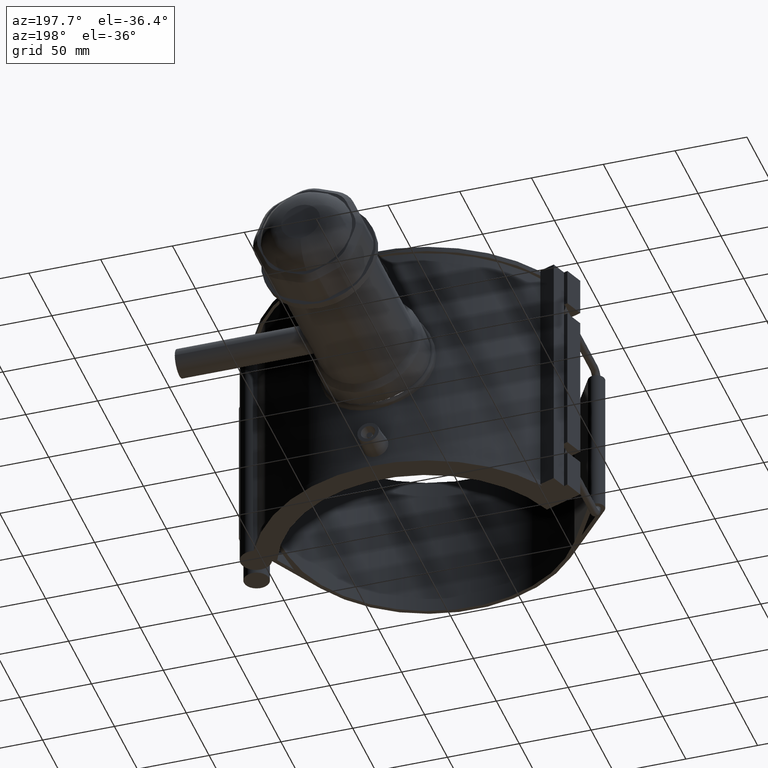
[diagram: clean part render]
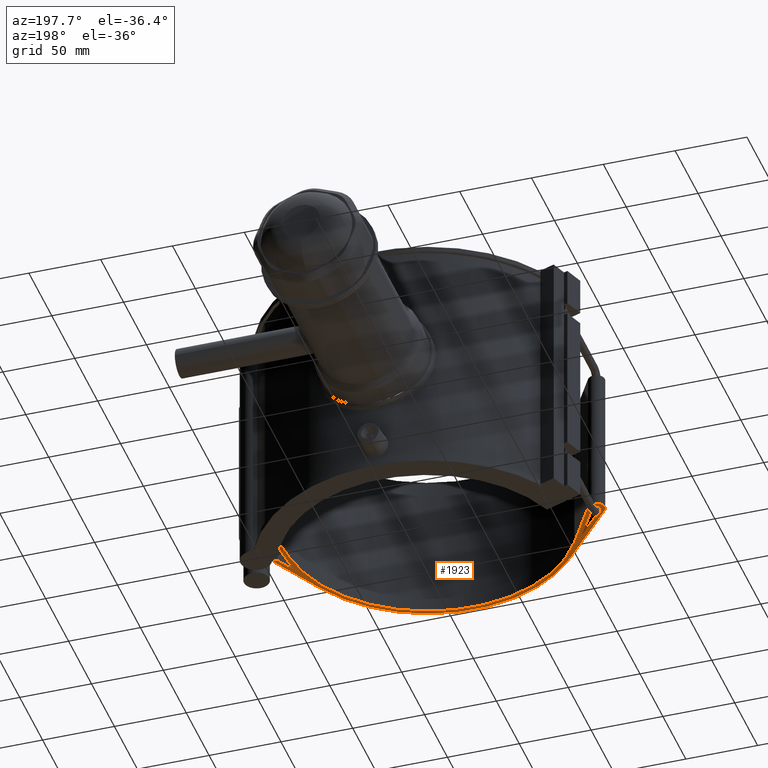
[diagram: same view with one face highlighted and labeled with its STEP entity id]
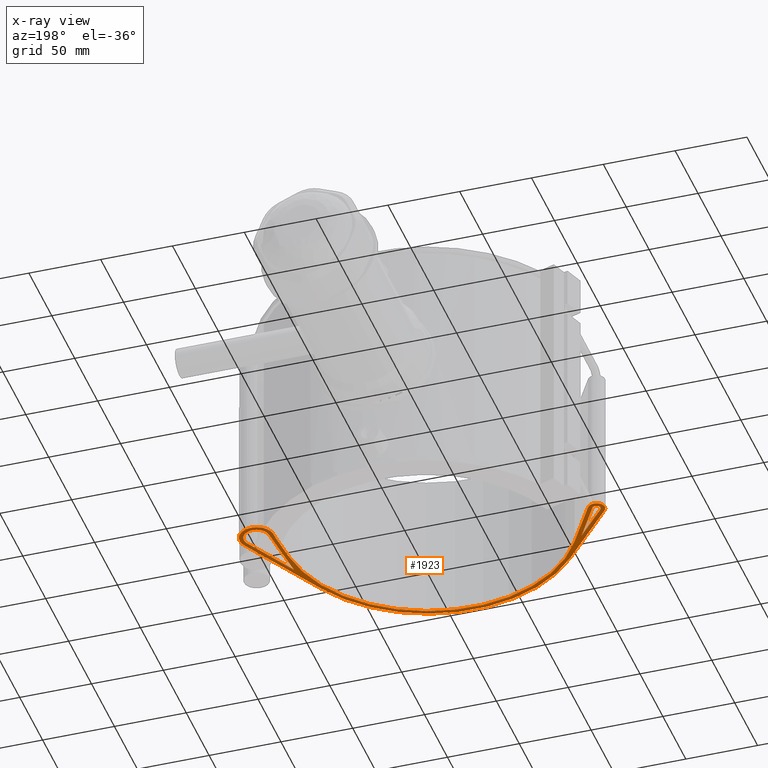
[diagram: x-ray of the same camera — body ghosted, the highlighted face saturated]
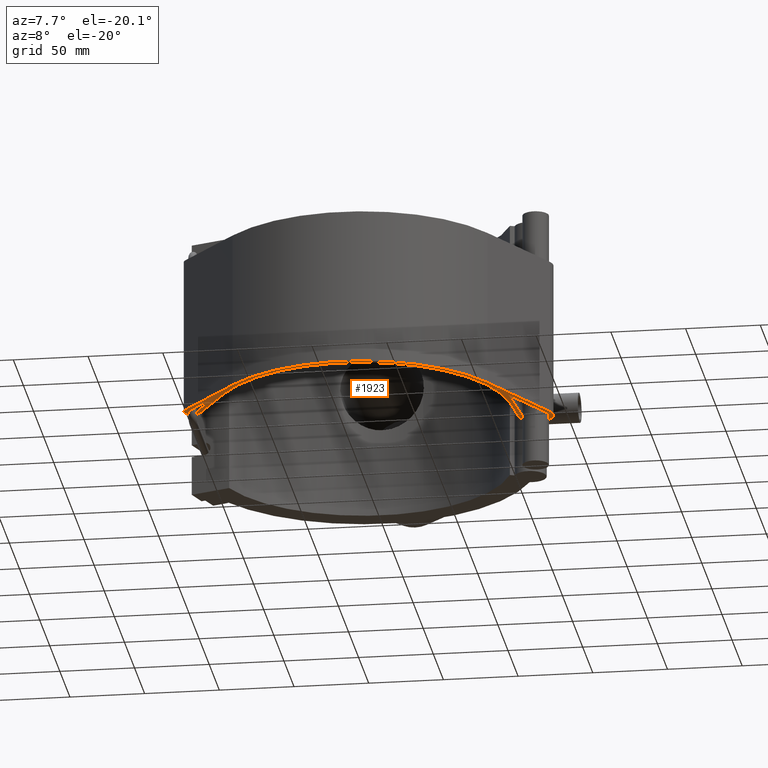
[diagram: same view with one face highlighted and labeled with its STEP entity id]
A machine part, auxiliary view. The second image highlights one B-rep face of the part: STEP entity #1923.
The next image is the same camera in x-ray: the body ghosted, the highlighted face saturated — about 10% of this face is hidden behind the body in this view.
A second angle (auxiliary view) of the same face is appended — the face is thin or edge-on in the first view.
In plain terms, the highlighted planar face has unit normal (0, 0, 1).
Its self-contained STEP definition (entity closure, byte-faithful):
#95=LINE('',#3265,#256);
#99=LINE('',#3273,#260);
#102=LINE('',#3284,#263);
#103=LINE('',#3288,#264);
#104=LINE('',#3292,#265);
#105=LINE('',#3296,#266);
#106=LINE('',#3302,#267);
#107=LINE('',#3303,#268);
#256=VECTOR('',#2430,42.3357405477701);
#260=VECTOR('',#2436,42.3357405477701);
#263=VECTOR('',#2445,69.8614012500134);
#264=VECTOR('',#2448,57.6362723718396);
#265=VECTOR('',#2451,39.7006283693455);
#266=VECTOR('',#2454,18.7376487946892);
#267=VECTOR('',#2459,31.6910839622462);
#268=VECTOR('',#2460,31.6910839622462);
#374=FACE_BOUND('',#637,.T.);
#375=FACE_BOUND('',#638,.T.);
#502=FACE_OUTER_BOUND('',#636,.T.);
#636=EDGE_LOOP('',(#1467,#1468,#1469,#1470,#1471,#1472,#1473,#1474,#1475,
#1476));
#637=EDGE_LOOP('',(#1477,#1478,#1479));
#638=EDGE_LOOP('',(#1480,#1481,#1482));
#767=CIRCLE('',#2080,11.8461538461538);
#768=CIRCLE('',#2081,11.8461538461538);
#769=CIRCLE('',#2082,103.);
#770=CIRCLE('',#2083,5.80000000000001);
#771=CIRCLE('',#2084,100.);
#772=CIRCLE('',#2085,100.);
#773=CIRCLE('',#2086,2.8);
#774=CIRCLE('',#2087,8.84615384615381);
#882=VERTEX_POINT('',#3263);
#883=VERTEX_POINT('',#3264);
#886=VERTEX_POINT('',#3272);
#888=VERTEX_POINT('',#3278);
#889=VERTEX_POINT('',#3279);
#890=VERTEX_POINT('',#3281);
#891=VERTEX_POINT('',#3283);
#892=VERTEX_POINT('',#3285);
#893=VERTEX_POINT('',#3287);
#894=VERTEX_POINT('',#3289);
#895=VERTEX_POINT('',#3291);
#896=VERTEX_POINT('',#3293);
#897=VERTEX_POINT('',#3295);
#898=VERTEX_POINT('',#3298);
#899=VERTEX_POINT('',#3299);
#900=VERTEX_POINT('',#3301);
#1095=EDGE_CURVE('',#882,#883,#95,.T.);
#1099=EDGE_CURVE('',#883,#886,#99,.T.);
#1102=EDGE_CURVE('',#888,#889,#767,.T.);
#1103=EDGE_CURVE('',#889,#890,#768,.T.);
#1104=EDGE_CURVE('',#890,#891,#102,.T.);
#1105=EDGE_CURVE('',#891,#892,#769,.T.);
#1106=EDGE_CURVE('',#892,#893,#103,.T.);
#1107=EDGE_CURVE('',#893,#894,#770,.T.);
#1108=EDGE_CURVE('',#894,#895,#104,.T.);
#1109=EDGE_CURVE('',#895,#896,#771,.T.);
#1110=EDGE_CURVE('',#896,#897,#105,.T.);
#1111=EDGE_CURVE('',#888,#897,#772,.T.);
#1112=EDGE_CURVE('',#898,#899,#773,.T.);
#1113=EDGE_CURVE('',#899,#900,#106,.T.);
#1114=EDGE_CURVE('',#900,#898,#107,.T.);
#1115=EDGE_CURVE('',#882,#886,#774,.T.);
#1467=ORIENTED_EDGE('',*,*,#1102,.T.);
#1468=ORIENTED_EDGE('',*,*,#1103,.T.);
#1469=ORIENTED_EDGE('',*,*,#1104,.T.);
#1470=ORIENTED_EDGE('',*,*,#1105,.T.);
#1471=ORIENTED_EDGE('',*,*,#1106,.T.);
#1472=ORIENTED_EDGE('',*,*,#1107,.T.);
#1473=ORIENTED_EDGE('',*,*,#1108,.T.);
#1474=ORIENTED_EDGE('',*,*,#1109,.T.);
#1475=ORIENTED_EDGE('',*,*,#1110,.T.);
#1476=ORIENTED_EDGE('',*,*,#1111,.F.);
#1477=ORIENTED_EDGE('',*,*,#1112,.T.);
#1478=ORIENTED_EDGE('',*,*,#1113,.T.);
#1479=ORIENTED_EDGE('',*,*,#1114,.T.);
#1480=ORIENTED_EDGE('',*,*,#1095,.T.);
#1481=ORIENTED_EDGE('',*,*,#1099,.T.);
#1482=ORIENTED_EDGE('',*,*,#1115,.F.);
#1829=PLANE('',#2079);
#1923=ADVANCED_FACE('',(#502,#374,#375),#1829,.F.);
#2079=AXIS2_PLACEMENT_3D('',#3277,#2439,#2440);
#2080=AXIS2_PLACEMENT_3D('',#3280,#2441,#2442);
#2081=AXIS2_PLACEMENT_3D('',#3282,#2443,#2444);
#2082=AXIS2_PLACEMENT_3D('',#3286,#2446,#2447);
#2083=AXIS2_PLACEMENT_3D('',#3290,#2449,#2450);
#2084=AXIS2_PLACEMENT_3D('',#3294,#2452,#2453);
#2085=AXIS2_PLACEMENT_3D('',#3297,#2455,#2456);
#2086=AXIS2_PLACEMENT_3D('',#3300,#2457,#2458);
#2087=AXIS2_PLACEMENT_3D('',#3304,#2461,#2462);
#2430=DIRECTION('',(-0.0905873526607487,-0.995888513608786,0.));
#2436=DIRECTION('',(0.481783564841131,0.876290246806942,0.));
#2439=DIRECTION('center_axis',(0.,0.,1.));
#2440=DIRECTION('ref_axis',(1.,0.,0.));
#2441=DIRECTION('center_axis',(0.,0.,-1.));
#2442=DIRECTION('ref_axis',(0.333937766224137,-0.942595124265574,0.));
#2443=DIRECTION('center_axis',(0.,0.,-1.));
#2444=DIRECTION('ref_axis',(0.333937766224137,-0.942595124265574,0.));
#2445=DIRECTION('',(-0.48178356484113,-0.876290246806943,0.));
#2446=DIRECTION('center_axis',(0.,0.,-1.));
#2447=DIRECTION('ref_axis',(0.988586012507429,0.150657545030644,0.));
#2448=DIRECTION('',(-0.654222560450905,0.756302083427689,0.));
#2449=DIRECTION('center_axis',(0.,0.,-1.));
#2450=DIRECTION('ref_axis',(-1.,0.,0.));
#2451=DIRECTION('',(0.511479804338621,-0.859295298342617,0.));
#2452=DIRECTION('center_axis',(0.,0.,1.));
#2453=DIRECTION('ref_axis',(0.859295298342617,0.511479804338621,0.));
#2454=DIRECTION('',(0.0905873526607489,0.995888513608786,0.));
#2455=DIRECTION('center_axis',(0.,0.,-1.));
#2456=DIRECTION('ref_axis',(0.998677892414806,-0.0514049336340508,0.));
#2457=DIRECTION('center_axis',(0.,0.,1.));
#2458=DIRECTION('ref_axis',(0.,-1.,0.));
#2459=DIRECTION('',(0.654222560450906,-0.756302083427688,0.));
#2460=DIRECTION('',(-0.511479804338621,0.859295298342617,0.));
#2461=DIRECTION('center_axis',(0.,0.,-1.));
#2462=DIRECTION('ref_axis',(1.,0.,0.));
#3263=CARTESIAN_POINT('',(104.725518277583,18.1037892528259,-52.8));
#3264=CARTESIAN_POINT('',(100.890435618428,-24.05788847382,-52.8));
#3265=CARTESIAN_POINT('',(98.9305788539803,-45.6039297555643,-52.8));
#3272=CARTESIAN_POINT('',(121.287099619722,13.0405080595401,-52.8));
#3273=CARTESIAN_POINT('',(93.0910545803784,-38.2437636956699,-52.8));
#3277=CARTESIAN_POINT('Origin',(9.76503148421383,-59.2176246542159,-52.8));
#3278=CARTESIAN_POINT('',(101.690020868822,17.4462897461497,-52.8));
#3279=CARTESIAN_POINT('',(110.177502823399,28.6627455084343,-52.8));
#3280=CARTESIAN_POINT('Origin',(113.535301282584,17.3024395946731,-52.8));
#3281=CARTESIAN_POINT('',(123.915970360143,11.5951573650167,-52.8));
#3282=CARTESIAN_POINT('Origin',(113.535301282584,17.3024395946731,-52.8));
#3283=CARTESIAN_POINT('',(90.2578954211151,-49.6237071786365,-52.8));
#3284=CARTESIAN_POINT('',(90.2578954211151,-49.6237071786365,-52.8));
#3285=CARTESIAN_POINT('',(-77.8991145930519,-67.3849237264432,-52.8));
#3286=CARTESIAN_POINT('Origin',(0.,0.,-52.8));
#3287=CARTESIAN_POINT('',(-115.606064279003,-23.7944908506153,-52.8));
#3288=CARTESIAN_POINT('',(-115.606064279003,-23.7944908506153,-52.8));
#3289=CARTESIAN_POINT('',(-106.235599464735,-17.033417134836,-52.8));
#3290=CARTESIAN_POINT('Origin',(-111.219512195122,-20.,-52.8));
#3291=CARTESIAN_POINT('',(-85.9295298342617,-51.1479804338621,-52.8));
#3292=CARTESIAN_POINT('',(-85.9295298342617,-51.1479804338621,-52.8));
#3293=CARTESIAN_POINT('',(99.5888513608786,-9.05873526607498,-52.8));
#3294=CARTESIAN_POINT('Origin',(0.,0.,-52.8));
#3295=CARTESIAN_POINT('',(101.286245360276,9.60187394059154,-52.8));
#3296=CARTESIAN_POINT('',(101.824359288265,15.5177271381563,-52.8));
#3297=CARTESIAN_POINT('Origin',(1.69739399939777,18.6606092066664,-52.8));
#3298=CARTESIAN_POINT('',(-108.813485359763,-18.5678565478519,-52.8));
#3299=CARTESIAN_POINT('',(-113.337158028719,-21.8318231692625,-52.8));
#3300=CARTESIAN_POINT('Origin',(-111.219512195122,-20.,-52.8));
#3301=CARTESIAN_POINT('',(-92.6041359354741,-45.7998559959911,-52.8));
#3302=CARTESIAN_POINT('',(-77.7437906351754,-62.9788877055131,-52.8));
#3303=CARTESIAN_POINT('',(-76.265019143956,-73.2498669620689,-52.8));
#3304=CARTESIAN_POINT('Origin',(113.535301282584,17.3024395946731,-52.8));